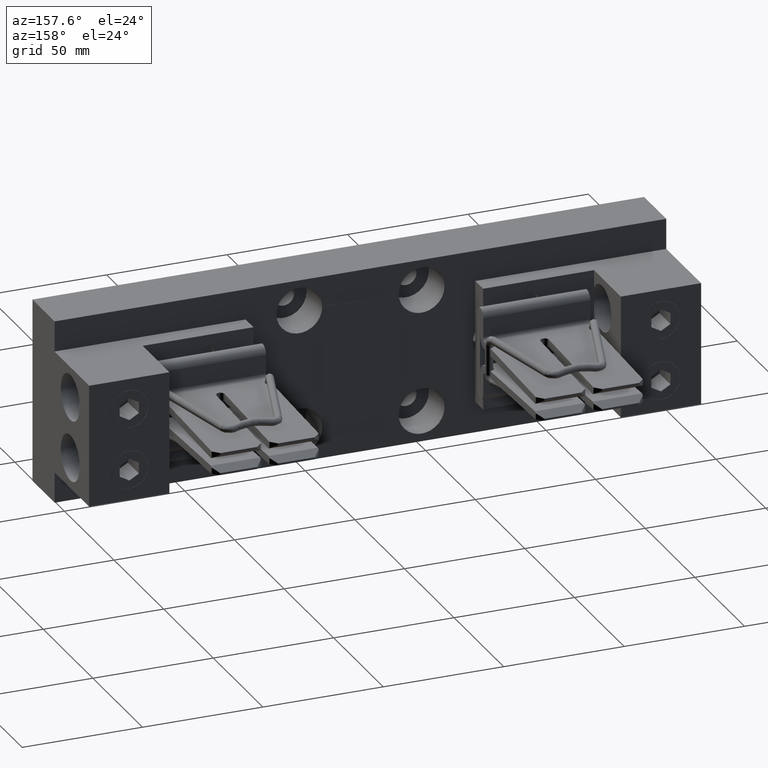
[diagram: clean part render]
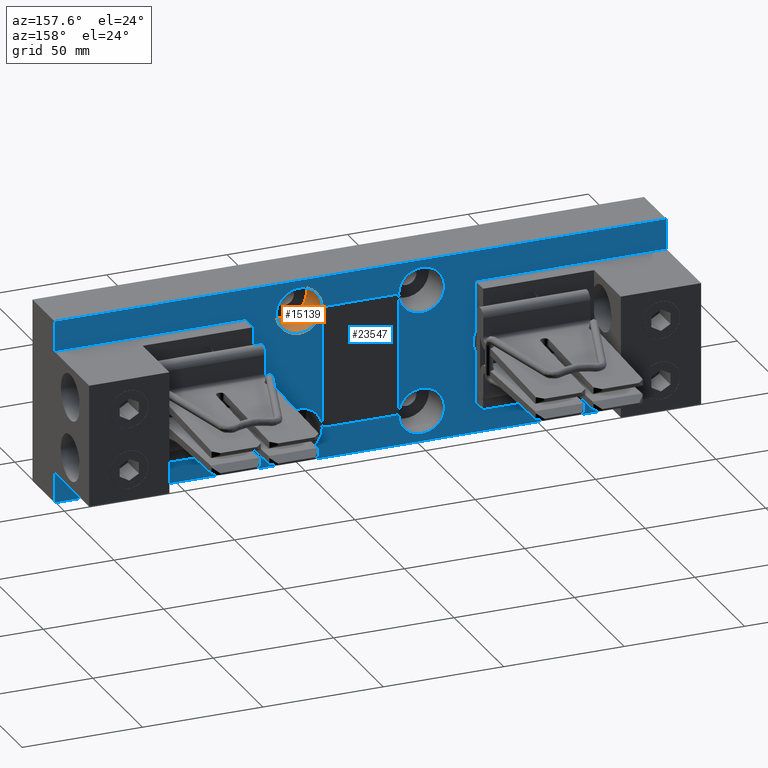
[diagram: same view with the hole feature highlighted: cylindrical wall and planar end face, labeled with their STEP entity ids]
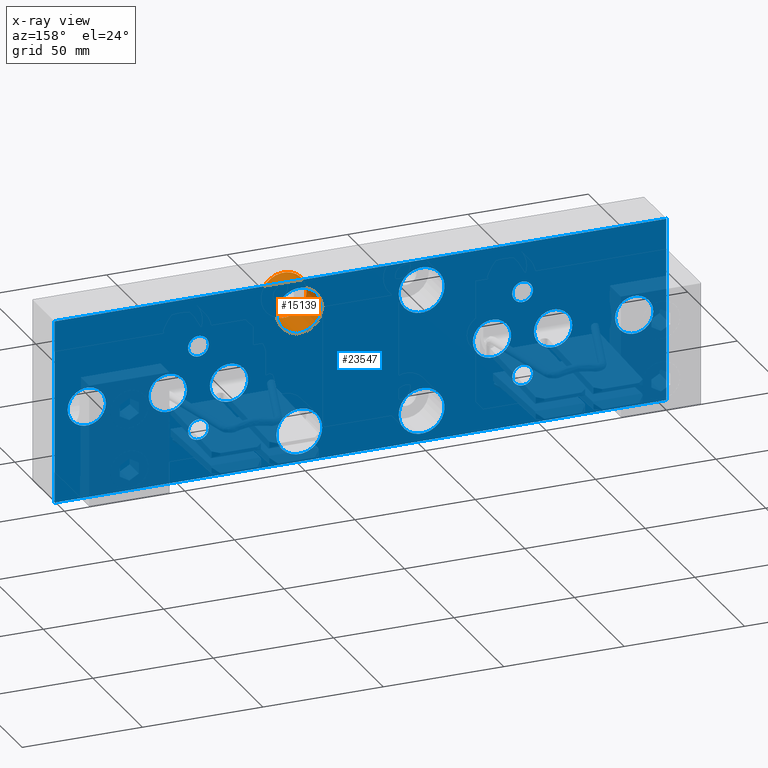
[diagram: x-ray of the same camera — body ghosted, the hole faces saturated]
A machine part, auxiliary view. The highlighted faces form one hole feature of diameter 19.05 mm: the cylindrical wall (entity #15139, orange) and its adjacent planar end face (entity #23547, blue) — they share a circular edge in the B-rep.
The next image is the same camera in x-ray (body ghosted, the hole faces saturated) — the bore reads through the body.
Wall:
#212 = EDGE_CURVE ( 'NONE', #275, #275, #11263, .T. ) ;
#275 = VERTEX_POINT ( 'NONE', #3958 ) ;
#617 = ORIENTED_EDGE ( 'NONE', *, *, #4348, .F. ) ;
#1084 = DIRECTION ( 'NONE',  ( 1.000000000000000000, 0.0000000000000000000, 0.0000000000000000000 ) ) ;
#1593 = EDGE_LOOP ( 'NONE', ( #617 ) ) ;
#2125 = FACE_OUTER_BOUND ( 'NONE', #1593, .T. ) ;
#3958 = CARTESIAN_POINT ( 'NONE',  ( 6.377000000000000700, 1.365923996832131600E-016, 0.9980000000000023300 ) ) ;
#4348 = EDGE_CURVE ( 'NONE', #7608, #7608, #5694, .T. ) ;
#4538 = CARTESIAN_POINT ( 'NONE',  ( 6.001999999999999800, -0.6199999999999997700, 0.9980000000000023300 ) ) ;
#5694 = CIRCLE ( 'NONE', #13868, 0.3750000000000002200 ) ;
#5775 = DIRECTION ( 'NONE',  ( 0.0000000000000000000, 1.000000000000000000, 0.0000000000000000000 ) ) ;
#6594 = DIRECTION ( 'NONE',  ( 1.000000000000000000, 0.0000000000000000000, 0.0000000000000000000 ) ) ;
#7608 = VERTEX_POINT ( 'NONE', #17310 ) ;
#11263 = CIRCLE ( 'NONE', #22850, 0.3750000000000002200 ) ;
#12235 = DIRECTION ( 'NONE',  ( 0.0000000000000000000, 1.000000000000000000, 0.0000000000000000000 ) ) ;
#13270 = ORIENTED_EDGE ( 'NONE', *, *, #212, .T. ) ;
#13868 = AXIS2_PLACEMENT_3D ( 'NONE', #17026, #5775, #18929 ) ;
#13892 = FACE_OUTER_BOUND ( 'NONE', #17245, .T. ) ;
#15139 = ADVANCED_FACE ( 'NONE', ( #2125, #13892 ), #16992, .F. ) ;
#16992 = CYLINDRICAL_SURFACE ( 'NONE', #17084, 0.3750000000000002200 ) ;
#17026 = CARTESIAN_POINT ( 'NONE',  ( 6.001999999999999800, -0.6199999999999997700, 0.9980000000000023300 ) ) ;
#17084 = AXIS2_PLACEMENT_3D ( 'NONE', #4538, #21530, #6594 ) ;
#17245 = EDGE_LOOP ( 'NONE', ( #13270 ) ) ;
#17310 = CARTESIAN_POINT ( 'NONE',  ( 6.377000000000000700, -0.6199999999999997700, 0.9980000000000023300 ) ) ;
#18929 = DIRECTION ( 'NONE',  ( 1.000000000000000000, 0.0000000000000000000, 0.0000000000000000000 ) ) ;
#21530 = DIRECTION ( 'NONE',  ( 0.0000000000000000000, 1.000000000000000000, 0.0000000000000000000 ) ) ;
#22850 = AXIS2_PLACEMENT_3D ( 'NONE', #23591, #12235, #1084 ) ;
#23591 = CARTESIAN_POINT ( 'NONE',  ( 6.001999999999999800, 1.365923996832131600E-016, 0.9980000000000023300 ) ) ;
End face:
#146 = EDGE_CURVE ( 'NONE', #3493, #3493, #3320, .T. ) ;
#212 = EDGE_CURVE ( 'NONE', #275, #275, #11263, .T. ) ;
#275 = VERTEX_POINT ( 'NONE', #3958 ) ;
#276 = VERTEX_POINT ( 'NONE', #18243 ) ;
#929 = DIRECTION ( 'NONE',  ( 0.0000000000000000000, -1.000000000000000000, 0.0000000000000000000 ) ) ;
#1063 = ORIENTED_EDGE ( 'NONE', *, *, #212, .F. ) ;
#1084 = DIRECTION ( 'NONE',  ( 1.000000000000000000, 0.0000000000000000000, 0.0000000000000000000 ) ) ;
#1132 = FACE_BOUND ( 'NONE', #17089, .T. ) ;
#1217 = AXIS2_PLACEMENT_3D ( 'NONE', #9943, #23104, #11768 ) ;
#1396 = FACE_BOUND ( 'NONE', #22172, .T. ) ;
#1466 = CARTESIAN_POINT ( 'NONE',  ( 10.00200000000000100, 1.365923996832131600E-016, 1.498000000000002200 ) ) ;
#1493 = EDGE_LOOP ( 'NONE', ( #11711, #6506, #5870, #5235 ) ) ;
#1602 = CIRCLE ( 'NONE', #13191, 0.3125000000000000000 ) ;
#1649 = CIRCLE ( 'NONE', #13321, 0.3750000000000002200 ) ;
#1813 = DIRECTION ( 'NONE',  ( 0.0000000000000000000, 1.000000000000000000, 0.0000000000000000000 ) ) ;
#1968 = AXIS2_PLACEMENT_3D ( 'NONE', #7356, #20477, #9228 ) ;
#1991 = CARTESIAN_POINT ( 'NONE',  ( 0.001999999999999596300, 1.365923996832131600E-016, 1.498000000000002200 ) ) ;
#2022 = CIRCLE ( 'NONE', #19031, 0.3124999999999994400 ) ;
#2053 = DIRECTION ( 'NONE',  ( 0.0000000000000000000, 1.000000000000000000, 0.0000000000000000000 ) ) ;
#2616 = FACE_BOUND ( 'NONE', #3000, .T. ) ;
#2683 = LINE ( 'NONE', #19741, #22754 ) ;
#3000 = EDGE_LOOP ( 'NONE', ( #14663 ) ) ;
#3272 = AXIS2_PLACEMENT_3D ( 'NONE', #20607, #9353, #22504 ) ;
#3320 = CIRCLE ( 'NONE', #5223, 0.1694999999999993700 ) ;
#3483 = FACE_BOUND ( 'NONE', #22148, .T. ) ;
#3493 = VERTEX_POINT ( 'NONE', #13232 ) ;
#3590 = CARTESIAN_POINT ( 'NONE',  ( 10.00200000000000100, 1.365923996832131600E-016, -1.501999999999998000 ) ) ;
#3592 = AXIS2_PLACEMENT_3D ( 'NONE', #12058, #929, #13965 ) ;
#3710 = AXIS2_PLACEMENT_3D ( 'NONE', #6703, #19835, #8604 ) ;
#3796 = DIRECTION ( 'NONE',  ( 0.0000000000000000000, 1.000000000000000000, 0.0000000000000000000 ) ) ;
#3958 = CARTESIAN_POINT ( 'NONE',  ( 6.377000000000000700, 1.365923996832131600E-016, 0.9980000000000023300 ) ) ;
#3972 = EDGE_LOOP ( 'NONE', ( #16022 ) ) ;
#4322 = DIRECTION ( 'NONE',  ( 0.0000000000000000000, -1.000000000000000000, 0.0000000000000000000 ) ) ;
#4350 = EDGE_CURVE ( 'NONE', #8223, #8223, #15169, .T. ) ;
#4387 = EDGE_CURVE ( 'NONE', #8462, #8462, #8170, .T. ) ;
#4476 = CIRCLE ( 'NONE', #3710, 0.3124999999999994400 ) ;
#4678 = ORIENTED_EDGE ( 'NONE', *, *, #18543, .F. ) ;
#4874 = FACE_BOUND ( 'NONE', #14955, .T. ) ;
#4891 = VERTEX_POINT ( 'NONE', #20419 ) ;
#4918 = CARTESIAN_POINT ( 'NONE',  ( 9.789499999999998500, 1.365923996832131600E-016, -0.001999999999997973500 ) ) ;
#4923 = FACE_BOUND ( 'NONE', #22259, .T. ) ;
#5138 = EDGE_CURVE ( 'NONE', #22493, #10474, #11328, .T. ) ;
#5223 = AXIS2_PLACEMENT_3D ( 'NONE', #15551, #4322, #17448 ) ;
#5235 = ORIENTED_EDGE ( 'NONE', *, *, #12959, .T. ) ;
#5291 = DIRECTION ( 'NONE',  ( -0.0000000000000000000, -1.000000000000000000, 0.0000000000000000000 ) ) ;
#5403 = ORIENTED_EDGE ( 'NONE', *, *, #23576, .F. ) ;
#5480 = FACE_BOUND ( 'NONE', #16585, .T. ) ;
#5563 = EDGE_CURVE ( 'NONE', #10234, #10234, #7448, .T. ) ;
#5850 = CARTESIAN_POINT ( 'NONE',  ( 2.351999999999999400, 1.365923996832131600E-016, -0.6919999999999976200 ) ) ;
#5870 = ORIENTED_EDGE ( 'NONE', *, *, #16689, .F. ) ;
#6039 = ORIENTED_EDGE ( 'NONE', *, *, #14355, .F. ) ;
#6052 = CARTESIAN_POINT ( 'NONE',  ( 7.464499999999999200, 1.365923996832131600E-016, -0.001999999999997917900 ) ) ;
#6095 = EDGE_LOOP ( 'NONE', ( #4678 ) ) ;
#6506 = ORIENTED_EDGE ( 'NONE', *, *, #5138, .F. ) ;
#6703 = CARTESIAN_POINT ( 'NONE',  ( 9.477000000000000300, 1.365923996832131600E-016, -0.001999999999997966100 ) ) ;
#7091 = ORIENTED_EDGE ( 'NONE', *, *, #14586, .T. ) ;
#7251 = FACE_BOUND ( 'NONE', #3972, .T. ) ;
#7321 = EDGE_LOOP ( 'NONE', ( #10011 ) ) ;
#7333 = DIRECTION ( 'NONE',  ( 1.000000000000000000, 0.0000000000000000000, -2.391543916884179100E-017 ) ) ;
#7356 = CARTESIAN_POINT ( 'NONE',  ( 1.851999999999999900, 1.365923996832131600E-016, -0.001999999999997783500 ) ) ;
#7366 = ORIENTED_EDGE ( 'NONE', *, *, #4387, .T. ) ;
#7448 = CIRCLE ( 'NONE', #21511, 0.3125000000000000000 ) ;
#7757 = DIRECTION ( 'NONE',  ( -1.000000000000000000, 0.0000000000000000000, 0.0000000000000000000 ) ) ;
#7965 = ORIENTED_EDGE ( 'NONE', *, *, #12829, .F. ) ;
#7982 = CARTESIAN_POINT ( 'NONE',  ( 10.00200000000000100, 1.365923996832131600E-016, -1.501999999999998000 ) ) ;
#8102 = CARTESIAN_POINT ( 'NONE',  ( 0.001999999999999596300, 1.365923996832131600E-016, -1.501999999999998000 ) ) ;
#8119 = FACE_BOUND ( 'NONE', #6095, .T. ) ;
#8141 = FACE_BOUND ( 'NONE', #13677, .T. ) ;
#8170 = CIRCLE ( 'NONE', #17711, 0.1694999999999999300 ) ;
#8187 = CARTESIAN_POINT ( 'NONE',  ( 0.5269999999999995800, 1.365923996832131600E-016, -0.001999999999997751800 ) ) ;
#8196 = ORIENTED_EDGE ( 'NONE', *, *, #146, .T. ) ;
#8223 = VERTEX_POINT ( 'NONE', #6052 ) ;
#8462 = VERTEX_POINT ( 'NONE', #19208 ) ;
#8604 = DIRECTION ( 'NONE',  ( 1.000000000000000000, 0.0000000000000000000, -2.390366994456234300E-017 ) ) ;
#9018 = CARTESIAN_POINT ( 'NONE',  ( 4.001999999999999800, 1.365923996832131600E-016, -1.001999999999998000 ) ) ;
#9228 = DIRECTION ( 'NONE',  ( 1.000000000000000000, 0.0000000000000000000, -2.390366994456230000E-017 ) ) ;
#9353 = DIRECTION ( 'NONE',  ( 0.0000000000000000000, 1.000000000000000000, 0.0000000000000000000 ) ) ;
#9549 = CARTESIAN_POINT ( 'NONE',  ( 7.151999999999999200, 1.365923996832131600E-016, -0.001999999999997910600 ) ) ;
#9876 = LINE ( 'NONE', #3590, #19909 ) ;
#9943 = CARTESIAN_POINT ( 'NONE',  ( 7.652000000000000100, 1.365923996832131600E-016, -0.6919999999999976200 ) ) ;
#10011 = ORIENTED_EDGE ( 'NONE', *, *, #10292, .T. ) ;
#10041 = DIRECTION ( 'NONE',  ( 1.000000000000000000, 0.0000000000000000000, -2.390366994456230000E-017 ) ) ;
#10234 = VERTEX_POINT ( 'NONE', #17392 ) ;
#10292 = EDGE_CURVE ( 'NONE', #19067, #19067, #12077, .T. ) ;
#10348 = DIRECTION ( 'NONE',  ( 2.391543916884179100E-017, -0.0000000000000000000, 1.000000000000000000 ) ) ;
#10464 = CARTESIAN_POINT ( 'NONE',  ( 2.182499999999999700, 1.365923996832131600E-016, 0.6880000000000021700 ) ) ;
#10474 = VERTEX_POINT ( 'NONE', #1466 ) ;
#10582 = AXIS2_PLACEMENT_3D ( 'NONE', #9018, #22169, #10852 ) ;
#10683 = VECTOR ( 'NONE', #23177, 39.37007874015748100 ) ;
#10699 = VECTOR ( 'NONE', #19692, 39.37007874015748100 ) ;
#10835 = EDGE_CURVE ( 'NONE', #20248, #20248, #22006, .T. ) ;
#10850 = EDGE_LOOP ( 'NONE', ( #18564 ) ) ;
#10852 = DIRECTION ( 'NONE',  ( 1.000000000000000000, 0.0000000000000000000, 0.0000000000000000000 ) ) ;
#10909 = EDGE_LOOP ( 'NONE', ( #7091 ) ) ;
#11253 = FACE_OUTER_BOUND ( 'NONE', #1493, .T. ) ;
#11263 = CIRCLE ( 'NONE', #22850, 0.3750000000000002200 ) ;
#11328 = LINE ( 'NONE', #7982, #10683 ) ;
#11384 = DIRECTION ( 'NONE',  ( 1.000000000000000000, 0.0000000000000000000, -2.390366994456234300E-017 ) ) ;
#11711 = ORIENTED_EDGE ( 'NONE', *, *, #19819, .T. ) ;
#11768 = DIRECTION ( 'NONE',  ( -1.000000000000000000, 0.0000000000000000000, 0.0000000000000000000 ) ) ;
#12058 = CARTESIAN_POINT ( 'NONE',  ( 2.351999999999999400, 1.365923996832131600E-016, 0.6880000000000021700 ) ) ;
#12077 = CIRCLE ( 'NONE', #1217, 0.1694999999999993700 ) ;
#12118 = CIRCLE ( 'NONE', #3592, 0.1694999999999999300 ) ;
#12235 = DIRECTION ( 'NONE',  ( 0.0000000000000000000, 1.000000000000000000, 0.0000000000000000000 ) ) ;
#12511 = ORIENTED_EDGE ( 'NONE', *, *, #15935, .F. ) ;
#12829 = EDGE_CURVE ( 'NONE', #23796, #23796, #1649, .T. ) ;
#12894 = CIRCLE ( 'NONE', #3272, 0.3750000000000002200 ) ;
#12922 = CARTESIAN_POINT ( 'NONE',  ( 6.001999999999999800, 1.365923996832131600E-016, -1.001999999999998000 ) ) ;
#12959 = EDGE_CURVE ( 'NONE', #17440, #20701, #2683, .T. ) ;
#13184 = CARTESIAN_POINT ( 'NONE',  ( 2.851999999999999400, 1.365923996832131600E-016, -0.001999999999997807400 ) ) ;
#13191 = AXIS2_PLACEMENT_3D ( 'NONE', #13184, #2053, #15089 ) ;
#13232 = CARTESIAN_POINT ( 'NONE',  ( 7.482500000000000800, 1.365923996832131600E-016, 0.6880000000000021700 ) ) ;
#13238 = EDGE_CURVE ( 'NONE', #24104, #24104, #1602, .T. ) ;
#13319 = VERTEX_POINT ( 'NONE', #4918 ) ;
#13321 = AXIS2_PLACEMENT_3D ( 'NONE', #12922, #1813, #14855 ) ;
#13624 = CIRCLE ( 'NONE', #1968, 0.3125000000000000000 ) ;
#13677 = EDGE_LOOP ( 'NONE', ( #7366 ) ) ;
#13888 = CARTESIAN_POINT ( 'NONE',  ( 7.482500000000000800, 1.365923996832131600E-016, -0.6919999999999976200 ) ) ;
#13960 = FACE_BOUND ( 'NONE', #10909, .T. ) ;
#13965 = DIRECTION ( 'NONE',  ( -1.000000000000000000, 0.0000000000000000000, 0.0000000000000000000 ) ) ;
#14144 = CARTESIAN_POINT ( 'NONE',  ( 10.00200000000000100, 1.365923996832131600E-016, 1.498000000000002200 ) ) ;
#14355 = EDGE_CURVE ( 'NONE', #17834, #17834, #12894, .T. ) ;
#14499 = ORIENTED_EDGE ( 'NONE', *, *, #5563, .F. ) ;
#14586 = EDGE_CURVE ( 'NONE', #14808, #14808, #12118, .T. ) ;
#14663 = ORIENTED_EDGE ( 'NONE', *, *, #10835, .F. ) ;
#14808 = VERTEX_POINT ( 'NONE', #10464 ) ;
#14843 = FACE_BOUND ( 'NONE', #7321, .T. ) ;
#14855 = DIRECTION ( 'NONE',  ( 1.000000000000000000, 0.0000000000000000000, 0.0000000000000000000 ) ) ;
#14955 = EDGE_LOOP ( 'NONE', ( #12511 ) ) ;
#14973 = CARTESIAN_POINT ( 'NONE',  ( 8.151999999999999200, 1.365923996832131600E-016, -0.001999999999997934000 ) ) ;
#15089 = DIRECTION ( 'NONE',  ( 1.000000000000000000, 0.0000000000000000000, -2.390366994456230000E-017 ) ) ;
#15169 = CIRCLE ( 'NONE', #16445, 0.3124999999999994400 ) ;
#15551 = CARTESIAN_POINT ( 'NONE',  ( 7.652000000000000100, 1.365923996832131600E-016, 0.6880000000000021700 ) ) ;
#15935 = EDGE_CURVE ( 'NONE', #13319, #13319, #4476, .T. ) ;
#16022 = ORIENTED_EDGE ( 'NONE', *, *, #4350, .F. ) ;
#16445 = AXIS2_PLACEMENT_3D ( 'NONE', #9549, #22715, #11384 ) ;
#16540 = CARTESIAN_POINT ( 'NONE',  ( 10.00200000000000100, 1.365923996832131600E-016, -1.501999999999998000 ) ) ;
#16585 = EDGE_LOOP ( 'NONE', ( #7965 ) ) ;
#16689 = EDGE_CURVE ( 'NONE', #17440, #22493, #9876, .T. ) ;
#16873 = DIRECTION ( 'NONE',  ( 1.000000000000000000, 0.0000000000000000000, -2.390366994456234300E-017 ) ) ;
#16949 = LINE ( 'NONE', #14144, #10699 ) ;
#17089 = EDGE_LOOP ( 'NONE', ( #5403 ) ) ;
#17392 = CARTESIAN_POINT ( 'NONE',  ( 0.8394999999999995800, 1.365923996832131600E-016, -0.001999999999997759200 ) ) ;
#17440 = VERTEX_POINT ( 'NONE', #8102 ) ;
#17448 = DIRECTION ( 'NONE',  ( -1.000000000000000000, 0.0000000000000000000, 0.0000000000000000000 ) ) ;
#17711 = AXIS2_PLACEMENT_3D ( 'NONE', #5850, #19011, #7757 ) ;
#17834 = VERTEX_POINT ( 'NONE', #19861 ) ;
#17907 = CARTESIAN_POINT ( 'NONE',  ( 6.377000000000000700, 1.365923996832131600E-016, -1.001999999999998000 ) ) ;
#18243 = CARTESIAN_POINT ( 'NONE',  ( 8.464499999999999200, 1.365923996832131600E-016, -0.001999999999997941800 ) ) ;
#18452 = DIRECTION ( 'NONE',  ( -1.000000000000000000, 0.0000000000000000000, 2.391543916884179100E-017 ) ) ;
#18543 = EDGE_CURVE ( 'NONE', #276, #276, #2022, .T. ) ;
#18564 = ORIENTED_EDGE ( 'NONE', *, *, #13238, .F. ) ;
#19011 = DIRECTION ( 'NONE',  ( 0.0000000000000000000, -1.000000000000000000, 0.0000000000000000000 ) ) ;
#19012 = FACE_BOUND ( 'NONE', #10850, .T. ) ;
#19031 = AXIS2_PLACEMENT_3D ( 'NONE', #14973, #3796, #16873 ) ;
#19067 = VERTEX_POINT ( 'NONE', #13888 ) ;
#19208 = CARTESIAN_POINT ( 'NONE',  ( 2.182499999999999700, 1.365923996832131600E-016, -0.6919999999999976200 ) ) ;
#19692 = DIRECTION ( 'NONE',  ( 1.000000000000000000, 0.0000000000000000000, -2.391543916884179100E-017 ) ) ;
#19741 = CARTESIAN_POINT ( 'NONE',  ( 0.001999999999999596300, 1.365923996832131600E-016, -1.501999999999998000 ) ) ;
#19781 = CARTESIAN_POINT ( 'NONE',  ( 3.164499999999999400, 1.365923996832131600E-016, -0.001999999999997814700 ) ) ;
#19819 = EDGE_CURVE ( 'NONE', #20701, #10474, #16949, .T. ) ;
#19835 = DIRECTION ( 'NONE',  ( 0.0000000000000000000, 1.000000000000000000, 0.0000000000000000000 ) ) ;
#19861 = CARTESIAN_POINT ( 'NONE',  ( 4.376999999999999800, 1.365923996832131600E-016, 0.9980000000000023300 ) ) ;
#19909 = VECTOR ( 'NONE', #7333, 39.37007874015748100 ) ;
#19992 = AXIS2_PLACEMENT_3D ( 'NONE', #16540, #5291, #18452 ) ;
#20241 = PLANE ( 'NONE',  #19992 ) ;
#20248 = VERTEX_POINT ( 'NONE', #21496 ) ;
#20419 = CARTESIAN_POINT ( 'NONE',  ( 2.164499999999999900, 1.365923996832131600E-016, -0.001999999999997791300 ) ) ;
#20470 = FACE_BOUND ( 'NONE', #22759, .T. ) ;
#20477 = DIRECTION ( 'NONE',  ( 0.0000000000000000000, 1.000000000000000000, 0.0000000000000000000 ) ) ;
#20607 = CARTESIAN_POINT ( 'NONE',  ( 4.001999999999999800, 1.365923996832131600E-016, 0.9980000000000023300 ) ) ;
#20701 = VERTEX_POINT ( 'NONE', #1991 ) ;
#21306 = DIRECTION ( 'NONE',  ( 0.0000000000000000000, 1.000000000000000000, 0.0000000000000000000 ) ) ;
#21496 = CARTESIAN_POINT ( 'NONE',  ( 4.376999999999999800, 1.365923996832131600E-016, -1.001999999999998000 ) ) ;
#21511 = AXIS2_PLACEMENT_3D ( 'NONE', #8187, #21306, #10041 ) ;
#21798 = CARTESIAN_POINT ( 'NONE',  ( 10.00200000000000100, 1.365923996832131600E-016, -1.501999999999998000 ) ) ;
#22006 = CIRCLE ( 'NONE', #10582, 0.3750000000000002200 ) ;
#22148 = EDGE_LOOP ( 'NONE', ( #1063 ) ) ;
#22169 = DIRECTION ( 'NONE',  ( 0.0000000000000000000, 1.000000000000000000, 0.0000000000000000000 ) ) ;
#22172 = EDGE_LOOP ( 'NONE', ( #6039 ) ) ;
#22259 = EDGE_LOOP ( 'NONE', ( #14499 ) ) ;
#22493 = VERTEX_POINT ( 'NONE', #21798 ) ;
#22504 = DIRECTION ( 'NONE',  ( 1.000000000000000000, 0.0000000000000000000, 0.0000000000000000000 ) ) ;
#22715 = DIRECTION ( 'NONE',  ( 0.0000000000000000000, 1.000000000000000000, 0.0000000000000000000 ) ) ;
#22754 = VECTOR ( 'NONE', #10348, 39.37007874015748100 ) ;
#22759 = EDGE_LOOP ( 'NONE', ( #8196 ) ) ;
#22850 = AXIS2_PLACEMENT_3D ( 'NONE', #23591, #12235, #1084 ) ;
#23104 = DIRECTION ( 'NONE',  ( 0.0000000000000000000, -1.000000000000000000, 0.0000000000000000000 ) ) ;
#23177 = DIRECTION ( 'NONE',  ( 2.391543916884179100E-017, -0.0000000000000000000, 1.000000000000000000 ) ) ;
#23547 = ADVANCED_FACE ( 'NONE', ( #4923, #4874, #5480, #3483, #2616, #1396, #1132, #19012, #7251, #8119, #14843, #20470, #13960, #8141, #11253 ), #20241, .F. ) ;
#23576 = EDGE_CURVE ( 'NONE', #4891, #4891, #13624, .T. ) ;
#23591 = CARTESIAN_POINT ( 'NONE',  ( 6.001999999999999800, 1.365923996832131600E-016, 0.9980000000000023300 ) ) ;
#23796 = VERTEX_POINT ( 'NONE', #17907 ) ;
#24104 = VERTEX_POINT ( 'NONE', #19781 ) ;